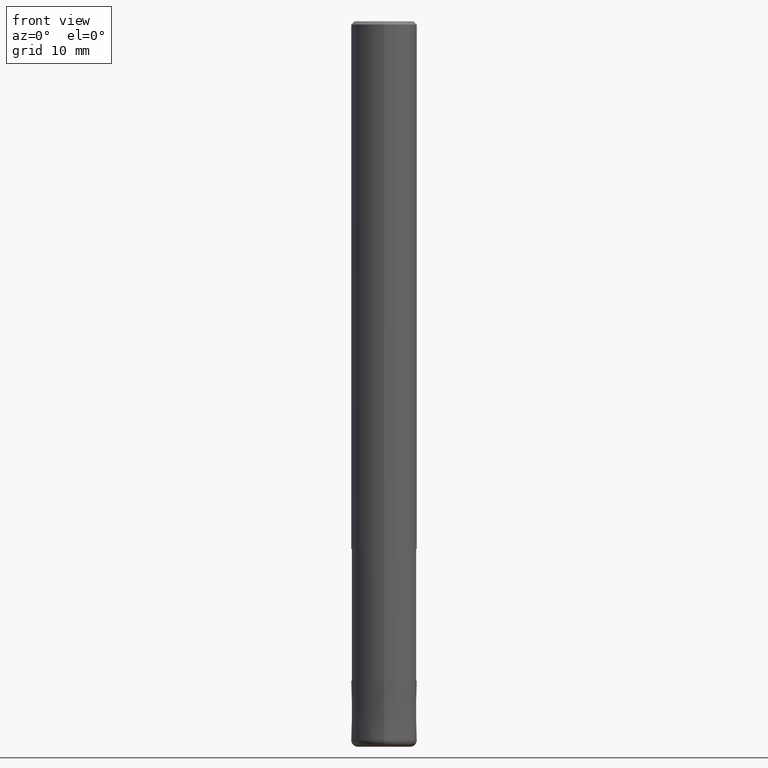
[diagram: clean part render]
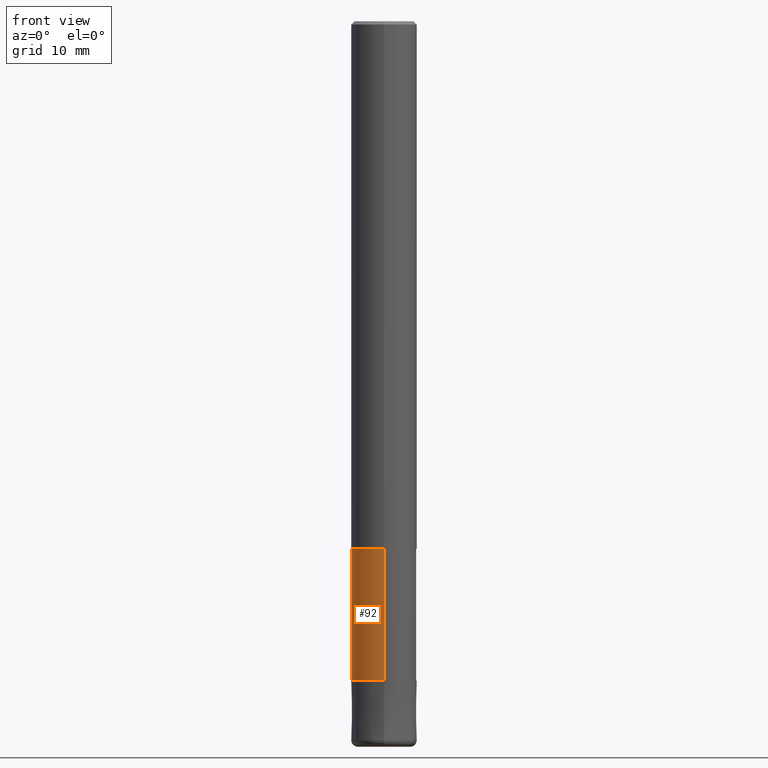
[diagram: same view with one face highlighted and labeled with its STEP entity id]
A machine part, front view. The second image highlights one B-rep face of the part: STEP entity #92.
In plain terms, the highlighted cylindrical surface (edge-blend (fillet) strip) has radius 4.91 mm, axis along (-0, -0, 1).
Its self-contained STEP definition (entity closure, byte-faithful):
#92=ADVANCED_FACE('',(#229),#230,.T.);
#98=VERTEX_POINT('',#236);
#106=VERTEX_POINT('',#244);
#152=VERTEX_POINT('',#297);
#164=VERTEX_POINT('',#312);
#166=EDGE_CURVE('',#152,#98,#314,.T.);
#200=EDGE_CURVE('',#106,#164,#351,.T.);
#202=EDGE_CURVE('',#152,#164,#353,.T.);
#204=EDGE_CURVE('',#98,#106,#355,.T.);
#229=FACE_OUTER_BOUND('',#374,.T.);
#230=CYLINDRICAL_SURFACE('',#375,4.90995);
#236=CARTESIAN_POINT('',(6.01275596695018E-016,-4.90995,-80.0));
#244=CARTESIAN_POINT('',(0.0,4.90995,-80.0));
#297=CARTESIAN_POINT('',(6.01275596695018E-016,-4.90995,-100.0));
#312=CARTESIAN_POINT('',(0.0,4.90995,-100.0));
#314=LINE('',#476,#477);
#351=LINE('',#525,#526);
#353=CIRCLE('',#529,4.90995);
#355=CIRCLE('',#532,4.90995);
#374=EDGE_LOOP('',(#541,#542,#543,#544));
#375=AXIS2_PLACEMENT_3D('',#545,#546,#547);
#476=CARTESIAN_POINT('',(6.01275596695018E-016,-4.90995,-90.0));
#477=VECTOR('',#648,1.0);
#525=CARTESIAN_POINT('',(-6.01275596695018E-016,4.90995,-90.0));
#526=VECTOR('',#693,1.0);
#529=AXIS2_PLACEMENT_3D('',#694,#695,#696);
#532=AXIS2_PLACEMENT_3D('',#697,#698,#699);
#541=ORIENTED_EDGE('',*,*,#200,.T.);
#542=ORIENTED_EDGE('',*,*,#202,.F.);
#543=ORIENTED_EDGE('',*,*,#166,.T.);
#544=ORIENTED_EDGE('',*,*,#204,.T.);
#545=CARTESIAN_POINT('',(0.0,0.0,-90.0));
#546=DIRECTION('',(-0.0,-0.0,1.0));
#547=DIRECTION('',(0.0,1.0,0.0));
#648=DIRECTION('',(-0.0,-0.0,1.0));
#693=DIRECTION('',(0.0,0.0,-1.0));
#694=CARTESIAN_POINT('',(0.0,0.0,-100.0));
#695=DIRECTION('',(0.0,0.0,-1.0));
#696=DIRECTION('',(0.0,1.0,0.0));
#697=CARTESIAN_POINT('',(0.0,0.0,-80.0));
#698=DIRECTION('',(0.0,0.0,-1.0));
#699=DIRECTION('',(0.0,1.0,0.0));